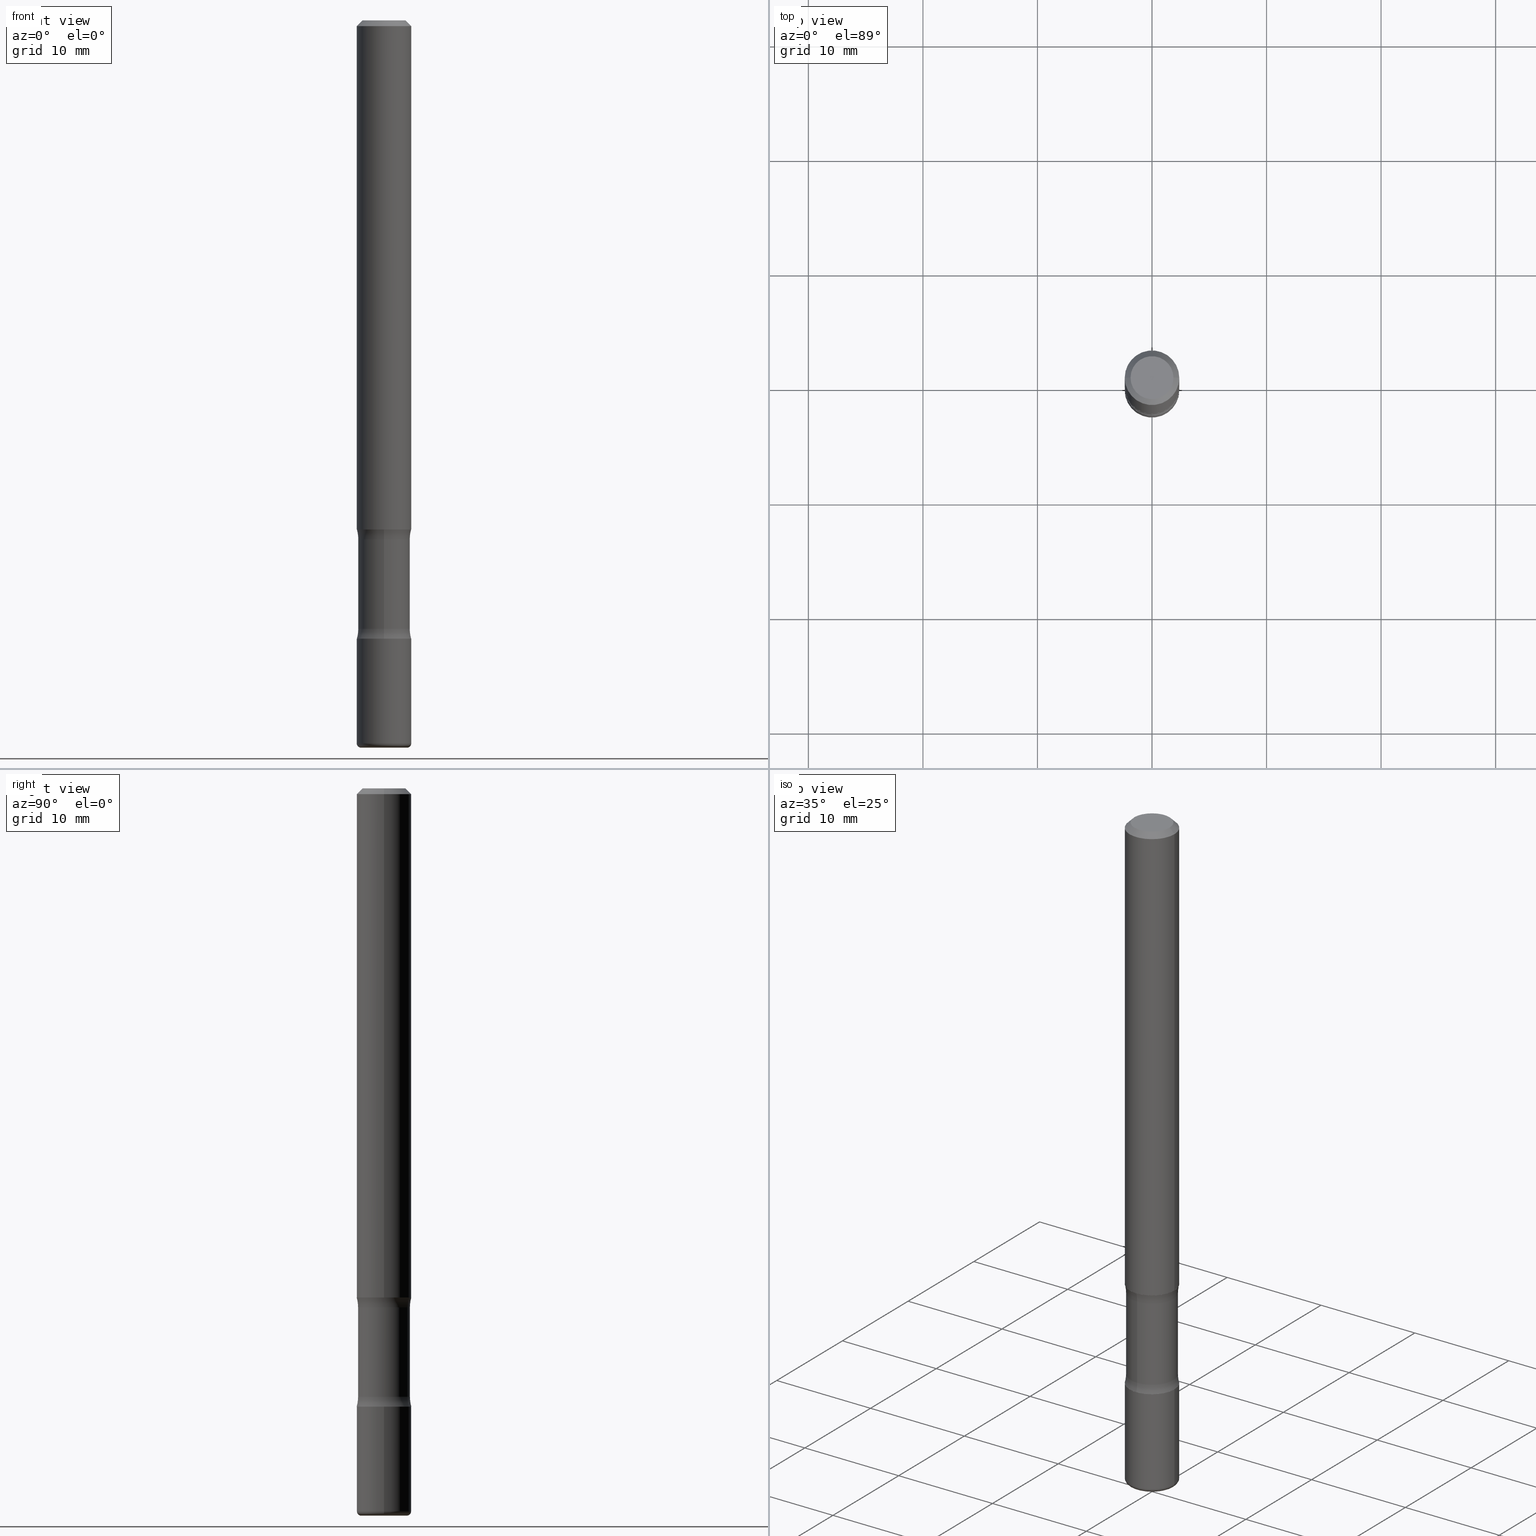
[diagram: canonical four-view strip — front | top / right | iso, engineering-drawing reading convention]
A machine part, canonical four-view strip (front | top / right | iso — engineering-drawing reading convention). The complete STEP part file that produces these views, byte-faithful:
ISO-10303-21;
HEADER;
FILE_DESCRIPTION (( 'STEP AP203' ),
    '1' );
FILE_NAME ('37776.STEP',
    '2024-03-02T00:13:44',
    ( '' ),
    ( '' ),
    'SwSTEP 2.0',
    'SolidWorks 2023',
    '' );
FILE_SCHEMA (( 'CONFIG_CONTROL_DESIGN' ));
ENDSEC;

DATA;
#1 = EDGE_LOOP ( 'NONE', ( #114, #169 ) ) ;
#2 = DIRECTION ( 'NONE',  ( -6.982962677686266711E-15, -1.000000000000000000, 3.491481338843145583E-15 ) ) ;
#3 = CARTESIAN_POINT ( 'NONE',  ( 8.726388948129611336E-30, -1.361158663068067946E-14, -2.125000000000000000 ) ) ;
#4 = APPROVAL_STATUS ( 'not_yet_approved' ) ;
#5 = ORIENTED_EDGE ( 'NONE', *, *, #517, .F. ) ;
#6 = CLOSED_SHELL ( 'NONE', ( #232, #502, #361, #266, #245, #106 ) ) ;
#7 = CARTESIAN_POINT ( 'NONE',  ( -0.07875000000000008382, -8.089674127473454054E-15, -2.500000000000000444 ) ) ;
#8 = CONICAL_SURFACE ( 'NONE', #209, 0.09374999999999981959, 0.7853981633974472798 ) ;
#9 = AXIS2_PLACEMENT_3D ( 'NONE', #89, #249, #420 ) ;
#10 = DIRECTION ( 'NONE',  ( -2.445468806185136877E-29, 3.491481338843145188E-15, 1.000000000000000000 ) ) ;
#11 = DIRECTION ( 'NONE',  ( -1.000000000000000000, 6.982962677686265922E-15, -4.876176775795935793E-29 ) ) ;
#12 = EDGE_CURVE ( 'NONE', #467, #431, #296, .T. ) ;
#13 = DIRECTION ( 'NONE',  ( 6.982962677686265922E-15, 1.000000000000000000, -3.336808337214296061E-15 ) ) ;
#14 = DIRECTION ( 'NONE',  ( 2.438088387897960049E-29, -3.491481338843145188E-15, -1.000000000000000000 ) ) ;
#15 = ORIENTED_EDGE ( 'NONE', *, *, #140, .T. ) ;
#16 = CARTESIAN_POINT ( 'NONE',  ( 4.890937612370276662E-31, -6.982962677686296539E-17, -0.02000000000000001776 ) ) ;
#17 = DIMENSIONAL_EXPONENTS ( 1.000000000000000000, 0.000000000000000000, 0.000000000000000000, 0.000000000000000000, 0.000000000000000000, 0.000000000000000000, 0.000000000000000000 ) ;
#18 = VECTOR ( 'NONE', #326, 39.37007874015748143 ) ;
#19 = AXIS2_PLACEMENT_3D ( 'NONE', #293, #27, #13 ) ;
#20 = ORIENTED_EDGE ( 'NONE', *, *, #98, .T. ) ;
#21 = ORIENTED_EDGE ( 'NONE', *, *, #429, .F. ) ;
#22 = DIRECTION ( 'NONE',  ( 1.000000000000000000, -6.982962677686266711E-15, 4.876176775795935793E-29 ) ) ;
#23 = DIRECTION ( 'NONE',  ( 1.000000000000000000, -6.982962677686265922E-15, 4.876176775795935793E-29 ) ) ;
#24 = DIRECTION ( 'NONE',  ( -1.000000000000000000, 6.982962677686265922E-15, -4.883557194083112901E-29 ) ) ;
#25 = FACE_OUTER_BOUND ( 'NONE', #301, .T. ) ;
#26 = ORIENTED_EDGE ( 'NONE', *, *, #199, .F. ) ;
#27 = DIRECTION ( 'NONE',  ( 2.553476385947133355E-29, -3.336808337214295667E-15, -1.000000000000000000 ) ) ;
#28 = CARTESIAN_POINT ( 'NONE',  ( 0.09375000000000004163, -6.764745094008592175E-15, -1.750000000000000000 ) ) ;
#29 = AXIS2_PLACEMENT_3D ( 'NONE', #320, #287, #171 ) ;
#30 = APPROVAL_PERSON_ORGANIZATION ( #492, #483, #402 ) ;
#31 = EDGE_CURVE ( 'NONE', #290, #75, #208, .T. ) ;
#32 = DIRECTION ( 'NONE',  ( -1.000000000000000000, 6.982962677686267499E-15, 0.000000000000000000 ) ) ;
#33 = ORIENTED_EDGE ( 'NONE', *, *, #550, .T. ) ;
#34 = ORIENTED_EDGE ( 'NONE', *, *, #47, .T. ) ;
#35 = COORDINATED_UNIVERSAL_TIME_OFFSET ( 5, 0, .BEHIND. ) ;
#36 = CALENDAR_DATE ( 2024, 1, 3 ) ;
#37 = PLANE ( 'NONE',  #280 ) ;
#38 = PRODUCT ( '37776', '37776', '', ( #158 ) ) ;
#39 = ADVANCED_FACE ( 'NONE', ( #241 ), #192, .T. ) ;
#40 = CIRCLE ( 'NONE', #146, 0.09374999999999981959 ) ;
#41 = DIRECTION ( 'NONE',  ( 1.000000000000000000, -6.982962677686266711E-15, 4.876176775795935793E-29 ) ) ;
#42 = ADVANCED_FACE ( 'NONE', ( #281 ), #507, .F. ) ;
#43 = DIRECTION ( 'NONE',  ( 1.000000000000000000, -6.982962677686258822E-15, 4.883557194083110098E-29 ) ) ;
#44 = ORIENTED_EDGE ( 'NONE', *, *, #411, .T. ) ;
#45 = ORIENTED_EDGE ( 'NONE', *, *, #477, .T. ) ;
#46 = AXIS2_PLACEMENT_3D ( 'NONE', #458, #452, #497 ) ;
#47 = EDGE_CURVE ( 'NONE', #344, #246, #141, .T. ) ;
#48 = CARTESIAN_POINT ( 'NONE',  ( -0.09375000000000005551, 6.661338147750943187E-16, -4.611501647113976798E-30 ) ) ;
#49 = VERTEX_POINT ( 'NONE', #159 ) ;
#50 = CARTESIAN_POINT ( 'NONE',  ( 4.325656488947447574E-29, -6.281246590105103764E-15, -1.783910210022204623 ) ) ;
#51 = DIRECTION ( 'NONE',  ( 1.000000000000000000, 0.000000000000000000, 0.000000000000000000 ) ) ;
#52 = DIRECTION ( 'NONE',  ( 1.000000000000000000, -6.982962677686266711E-15, 4.876176775795935793E-29 ) ) ;
#53 = EDGE_CURVE ( 'NONE', #393, #265, #242, .T. ) ;
#54 = CIRCLE ( 'NONE', #499, 0.01500000000000038629 ) ;
#55 = LINE ( 'NONE', #377, #193 ) ;
#56 = EDGE_CURVE ( 'NONE', #278, #144, #234, .T. ) ;
#57 = DIRECTION ( 'NONE',  ( -2.445468806185136597E-29, 3.491481338843145583E-15, 1.000000000000000000 ) ) ;
#58 = ORIENTED_EDGE ( 'NONE', *, *, #12, .T. ) ;
#59 = ORIENTED_EDGE ( 'NONE', *, *, #433, .T. ) ;
#60 = CARTESIAN_POINT ( 'NONE',  ( 6.154174857873591467E-29, -8.670700971497045879E-15, -2.500000000000000000 ) ) ;
#61 = CARTESIAN_POINT ( 'NONE',  ( 5.196621213143415268E-29, -7.419397845041685201E-15, -2.125000000000000000 ) ) ;
#62 = EDGE_LOOP ( 'NONE', ( #542, #181, #427, #79 ) ) ;
#63 = ORIENTED_EDGE ( 'NONE', *, *, #98, .F. ) ;
#64 = LINE ( 'NONE', #425, #303 ) ;
#65 = CIRCLE ( 'NONE', #243, 0.01500000000000038629 ) ;
#66 = CIRCLE ( 'NONE', #286, 0.1250000000000000278 ) ;
#67 = CARTESIAN_POINT ( 'NONE',  ( -6.431716872910290192E-16, -0.09375000000000745237, -2.125000000000000000 ) ) ;
#68 = ORIENTED_EDGE ( 'NONE', *, *, #300, .T. ) ;
#69 = CARTESIAN_POINT ( 'NONE',  ( -1.468575352647916884E-15, -0.2140625000000072886, -2.091089789977794933 ) ) ;
#70 = APPROVAL_DATE_TIME ( #349, #275 ) ;
#71 = CIRCLE ( 'NONE', #430, 0.09375000000000006939 ) ;
#72 = AXIS2_PLACEMENT_3D ( 'NONE', #94, #367, #515 ) ;
#73 = ORIENTED_EDGE ( 'NONE', *, *, #283, .F. ) ;
#74 =( LENGTH_UNIT ( ) NAMED_UNIT ( * ) SI_UNIT ( $, .METRE. ) );
#75 = VERTEX_POINT ( 'NONE', #416 ) ;
#76 = AXIS2_PLACEMENT_3D ( 'NONE', #221, #423, #469 ) ;
#77 = LOCAL_TIME ( 19, 13, 44.00000000000000000, #35 ) ;
#78 = COORDINATED_UNIVERSAL_TIME_OFFSET ( 5, 0, .BEHIND. ) ;
#79 = ORIENTED_EDGE ( 'NONE', *, *, #429, .T. ) ;
#80 = DIRECTION ( 'NONE',  ( -6.982962677686265922E-15, -1.000000000000000000, 0.000000000000000000 ) ) ;
#81 = FACE_OUTER_BOUND ( 'NONE', #198, .T. ) ;
#82 = AXIS2_PLACEMENT_3D ( 'NONE', #150, #57, #22 ) ;
#83 = ORGANIZATION ( 'UNSPECIFIED', 'UNSPECIFIED', '' ) ;
#84 = EDGE_CURVE ( 'NONE', #138, #265, #154, .T. ) ;
#85 = DIRECTION ( 'NONE',  ( 1.000000000000000000, -6.982962677686267499E-15, 0.000000000000000000 ) ) ;
#86 = CARTESIAN_POINT ( 'NONE',  ( 6.076989983370064174E-29, -8.676331127025216680E-15, -2.484999999999999876 ) ) ;
#87 = DIRECTION ( 'NONE',  ( 2.553476385947133355E-29, -3.336808337214295667E-15, -1.000000000000000000 ) ) ;
#88 = CARTESIAN_POINT ( 'NONE',  ( -6.431716872910389785E-16, -0.09375000000000620337, -1.749999999999999556 ) ) ;
#89 = CARTESIAN_POINT ( 'NONE',  ( 4.239067568413239630E-29, -6.168094718586322946E-15, -1.750000000000000000 ) ) ;
#90 = EDGE_LOOP ( 'NONE', ( #536, #168 ) ) ;
#91 = LINE ( 'NONE', #250, #92 ) ;
#92 = VECTOR ( 'NONE', #428, 39.37007874015748143 ) ;
#93 = PRODUCT_DEFINITION_FORMATION_WITH_SPECIFIED_SOURCE ( 'ANY', '', #38, .NOT_KNOWN. ) ;
#94 = CARTESIAN_POINT ( 'NONE',  ( 4.279570410823988484E-29, -6.110092342975504671E-15, -1.750000000000000000 ) ) ;
#95 = FACE_OUTER_BOUND ( 'NONE', #96, .T. ) ;
#96 = EDGE_LOOP ( 'NONE', ( #527, #204 ) ) ;
#97 = CC_DESIGN_PERSON_AND_ORGANIZATION_ASSIGNMENT ( #268, #356, ( #93 ) ) ;
#98 = EDGE_CURVE ( 'NONE', #246, #344, #297, .T. ) ;
#99 = EDGE_LOOP ( 'NONE', ( #68, #130 ) ) ;
#100 = CIRCLE ( 'NONE', #547, 0.09375000000000002776 ) ;
#101 = CIRCLE ( 'NONE', #548, 0.1250000000000000278 ) ;
#102 = CARTESIAN_POINT ( 'NONE',  ( 4.890937612370276662E-31, -6.982962677686296539E-17, -0.02000000000000001776 ) ) ;
#103 = CARTESIAN_POINT ( 'NONE',  ( 0.09375000000000026368, -9.330983878058304973E-15, -2.484999999999999876 ) ) ;
#104 = EDGE_LOOP ( 'NONE', ( #26, #418, #33, #135 ) ) ;
#105 = CARTESIAN_POINT ( 'NONE',  ( 6.219201134814940684E-16, 0.08906249999999125977, -2.500000000000000444 ) ) ;
#106 = ADVANCED_FACE ( 'NONE', ( #81 ), #235, .T. ) ;
#107 = EDGE_LOOP ( 'NONE', ( #190, #439 ) ) ;
#108 = AXIS2_PLACEMENT_3D ( 'NONE', #486, #388, #23 ) ;
#109 = ORIENTED_EDGE ( 'NONE', *, *, #545, .F. ) ;
#110 = DIRECTION ( 'NONE',  ( 6.860497997771531562E-15, 1.000000000000000000, 0.000000000000000000 ) ) ;
#111 = EDGE_LOOP ( 'NONE', ( #263, #145, #44, #400 ) ) ;
#112 = CARTESIAN_POINT ( 'NONE',  ( -0.09375000000000004163, -2.423827170101085722E-15, -1.750000000000000000 ) ) ;
#113 = DIRECTION ( 'NONE',  ( 1.000000000000000000, -6.982962677686270655E-15, 0.000000000000000000 ) ) ;
#114 = ORIENTED_EDGE ( 'NONE', *, *, #424, .T. ) ;
#115 = CC_DESIGN_PERSON_AND_ORGANIZATION_ASSIGNMENT ( #264, #309, ( #535 ) ) ;
#116 = DIRECTION ( 'NONE',  ( -2.445468806185136597E-29, 3.491481338843145583E-15, 1.000000000000000000 ) ) ;
#117 = ADVANCED_FACE ( 'NONE', ( #195 ), #355, .T. ) ;
#118 =( NAMED_UNIT ( * ) SI_UNIT ( $, .STERADIAN. ) SOLID_ANGLE_UNIT ( ) );
#119 = ORIENTED_EDGE ( 'NONE', *, *, #152, .T. ) ;
#120 = ORIENTED_EDGE ( 'NONE', *, *, #526, .T. ) ;
#121 = CIRCLE ( 'NONE', #457, 0.09375000000000004163 ) ;
#122 = DIRECTION ( 'NONE',  ( 0.7071067811865467956, -7.319954787623254468E-15, -0.7071067811865482389 ) ) ;
#123 = DIRECTION ( 'NONE',  ( 6.982962677686265922E-15, 1.000000000000000000, -2.913971193241877611E-15 ) ) ;
#124 = DIRECTION ( 'NONE',  ( 6.982962677686265133E-15, 1.000000000000000000, -3.067338098149349877E-15 ) ) ;
#125 = CARTESIAN_POINT ( 'NONE',  ( 0.000000000000000000, 0.000000000000000000, 0.000000000000000000 ) ) ;
#126 = VERTEX_POINT ( 'NONE', #112 ) ;
#127 = CARTESIAN_POINT ( 'NONE',  ( 5.113694852322927974E-29, -7.301000979552905916E-15, -2.091089789977795821 ) ) ;
#128 = DIRECTION ( 'NONE',  ( -2.445468806185136597E-29, 3.491481338843145583E-15, 1.000000000000000000 ) ) ;
#129 = DIRECTION ( 'NONE',  ( 6.982962677686265922E-15, 1.000000000000000000, -3.336808337214296061E-15 ) ) ;
#130 = ORIENTED_EDGE ( 'NONE', *, *, #31, .T. ) ;
#131 = CIRCLE ( 'NONE', #200, 0.07875000000000008382 ) ;
#132 = DIRECTION ( 'NONE',  ( 1.000000000000000000, -6.982962677686267499E-15, 0.000000000000000000 ) ) ;
#133 = CARTESIAN_POINT ( 'NONE',  ( 6.076989983370064174E-29, -8.676331127025216680E-15, -2.484999999999999876 ) ) ;
#134 = EDGE_CURVE ( 'NONE', #144, #393, #65, .T. ) ;
#135 = ORIENTED_EDGE ( 'NONE', *, *, #477, .F. ) ;
#136 = CYLINDRICAL_SURFACE ( 'NONE', #228, 0.09374999999999991673 ) ;
#137 = ORIENTED_EDGE ( 'NONE', *, *, #347, .T. ) ;
#138 = VERTEX_POINT ( 'NONE', #510 ) ;
#139 = DIRECTION ( 'NONE',  ( -2.445468806185136597E-29, 3.491481338843145583E-15, 1.000000000000000000 ) ) ;
#140 = EDGE_CURVE ( 'NONE', #344, #431, #248, .T. ) ;
#141 = CIRCLE ( 'NONE', #46, 0.08906249999999994726 ) ;
#142 = AXIS2_PLACEMENT_3D ( 'NONE', #451, #276, #85 ) ;
#143 = CARTESIAN_POINT ( 'NONE',  ( 5.113694852322927974E-29, -7.301000979552905916E-15, -2.091089789977795821 ) ) ;
#144 = VERTEX_POINT ( 'NONE', #7 ) ;
#145 = ORIENTED_EDGE ( 'NONE', *, *, #382, .T. ) ;
#146 = AXIS2_PLACEMENT_3D ( 'NONE', #16, #210, #132 ) ;
#147 = CIRCLE ( 'NONE', #9, 0.09375000000000009714 ) ;
#148 = DATE_TIME_ROLE ( 'classification_date' ) ;
#149 = APPROVAL_DATE_TIME ( #359, #483 ) ;
#150 = CARTESIAN_POINT ( 'NONE',  ( 0.000000000000000000, 0.000000000000000000, 0.000000000000000000 ) ) ;
#151 = PERSON_AND_ORGANIZATION ( #394, #83 ) ;
#152 = EDGE_CURVE ( 'NONE', #49, #259, #40, .T. ) ;
#153 = CARTESIAN_POINT ( 'NONE',  ( 6.113672015462842613E-29, -8.728703347107866520E-15, -2.500000000000000444 ) ) ;
#154 = CIRCLE ( 'NONE', #489, 0.09375000000000002776 ) ;
#155 = CIRCLE ( 'NONE', #422, 0.09375000000000002776 ) ;
#156 = ADVANCED_FACE ( 'NONE', ( #376 ), #518, .F. ) ;
#157 = DIRECTION ( 'NONE',  ( 1.000000000000000000, -6.982962677686267499E-15, 0.000000000000000000 ) ) ;
#158 = MECHANICAL_CONTEXT ( 'NONE', #461, 'mechanical' ) ;
#159 = CARTESIAN_POINT ( 'NONE',  ( 0.09374999999999981959, -7.130013140679428044E-16, -0.02000000000000001776 ) ) ;
#160 = CARTESIAN_POINT ( 'NONE',  ( -0.07875000000000008382, -8.116778722614137090E-15, -2.484999999999999876 ) ) ;
#161 = TOROIDAL_SURFACE ( 'NONE', #480, 0.2140624999999999889, 0.1250000000000000278 ) ;
#162 = CC_DESIGN_APPROVAL ( #275, ( #93 ) ) ;
#163 = LINE ( 'NONE', #223, #512 ) ;
#164 = CARTESIAN_POINT ( 'NONE',  ( 0.07374999999999984346, -6.094815207017961198E-16, 3.931526600461598749E-30 ) ) ;
#165 = EDGE_CURVE ( 'NONE', #126, #259, #91, .T. ) ;
#166 = CARTESIAN_POINT ( 'NONE',  ( 6.113672015462842613E-29, -8.728703347107866520E-15, -2.500000000000000444 ) ) ;
#167 = DIRECTION ( 'NONE',  ( 1.000000000000000000, -6.982962677686269866E-15, 0.000000000000000000 ) ) ;
#168 = ORIENTED_EDGE ( 'NONE', *, *, #283, .T. ) ;
#169 = ORIENTED_EDGE ( 'NONE', *, *, #199, .T. ) ;
#170 = AXIS2_PLACEMENT_3D ( 'NONE', #143, #327, #129 ) ;
#171 = DIRECTION ( 'NONE',  ( -6.982962677686265922E-15, -1.000000000000000000, 3.336808337214295667E-15 ) ) ;
#172 = LOCAL_TIME ( 19, 13, 44.00000000000000000, #78 ) ;
#173 = MANIFOLD_SOLID_BREP ( 'Body-Move/Copy2[1]', #219 ) ;
#174 = DIRECTION ( 'NONE',  ( 6.982962677686265133E-15, 1.000000000000000000, -6.134676196298701332E-15 ) ) ;
#175 = VERTEX_POINT ( 'NONE', #88 ) ;
#176 = DIRECTION ( 'NONE',  ( -2.445468806185136597E-29, 3.491481338843145583E-15, 1.000000000000000000 ) ) ;
#177 = EDGE_CURVE ( 'NONE', #290, #49, #64, .T. ) ;
#178 = DIRECTION ( 'NONE',  ( -6.982962677686265922E-15, -1.000000000000000000, 0.000000000000000000 ) ) ;
#179 = DIRECTION ( 'NONE',  ( -1.000000000000000000, 6.982962677686267499E-15, 0.000000000000000000 ) ) ;
#180 = DIRECTION ( 'NONE',  ( -2.445468806185136597E-29, 3.491481338843145583E-15, 1.000000000000000000 ) ) ;
#181 = ORIENTED_EDGE ( 'NONE', *, *, #300, .F. ) ;
#182 = DIRECTION ( 'NONE',  ( 1.000000000000000000, -6.860497997771530774E-15, 4.842693077587735886E-29 ) ) ;
#183 = AXIS2_PLACEMENT_3D ( 'NONE', #60, #299, #436 ) ;
#184 = CIRCLE ( 'NONE', #525, 0.1250000000000000278 ) ;
#185 = DIRECTION ( 'NONE',  ( 2.438088387897960049E-29, -3.491481338843145188E-15, -1.000000000000000000 ) ) ;
#186 = ORIENTED_EDGE ( 'NONE', *, *, #84, .F. ) ;
#187 = DATE_AND_TIME ( #399, #172 ) ;
#188 = CC_DESIGN_PERSON_AND_ORGANIZATION_ASSIGNMENT ( #307, #494, ( #93 ) ) ;
#189 = DIRECTION ( 'NONE',  ( 2.445468806185136597E-29, -3.491481338843145583E-15, -1.000000000000000000 ) ) ;
#190 = ORIENTED_EDGE ( 'NONE', *, *, #56, .F. ) ;
#191 = APPROVAL_ROLE ( '' ) ;
#192 = TOROIDAL_SURFACE ( 'NONE', #315, 0.07875000000000008382, 0.01500000000000039496 ) ;
#193 = VECTOR ( 'NONE', #10, 39.37007874015748143 ) ;
#194 = LENGTH_MEASURE_WITH_UNIT ( LENGTH_MEASURE( 0.02539999999999999897 ), #74 );
#195 = FACE_OUTER_BOUND ( 'NONE', #398, .T. ) ;
#196 = DIRECTION ( 'NONE',  ( -2.445468806185136597E-29, 3.491481338843145583E-15, 1.000000000000000000 ) ) ;
#197 = CALENDAR_DATE ( 2024, 1, 3 ) ;
#198 = EDGE_LOOP ( 'NONE', ( #544, #368, #488, #21 ) ) ;
#199 = EDGE_CURVE ( 'NONE', #351, #207, #345, .T. ) ;
#200 = AXIS2_PLACEMENT_3D ( 'NONE', #166, #530, #391 ) ;
#201 = CC_DESIGN_APPROVAL ( #500, ( #535 ) ) ;
#202 = DIRECTION ( 'NONE',  ( -2.445468806185136877E-29, 3.491481338843145188E-15, 1.000000000000000000 ) ) ;
#203 = PERSON_AND_ORGANIZATION ( #394, #83 ) ;
#204 = ORIENTED_EDGE ( 'NONE', *, *, #310, .F. ) ;
#205 = DIRECTION ( 'NONE',  ( 1.000000000000000000, -6.982962677686217012E-15, 0.000000000000000000 ) ) ;
#206 = DIRECTION ( 'NONE',  ( 6.982962677686265922E-15, 1.000000000000000000, -3.336808337214296061E-15 ) ) ;
#207 = VERTEX_POINT ( 'NONE', #333 ) ;
#208 = CIRCLE ( 'NONE', #270, 0.07374999999999984346 ) ;
#209 = AXIS2_PLACEMENT_3D ( 'NONE', #102, #226, #179 ) ;
#210 = DIRECTION ( 'NONE',  ( -2.445468806185136597E-29, 3.491481338843145583E-15, 1.000000000000000000 ) ) ;
#211 = CARTESIAN_POINT ( 'NONE',  ( -6.270923951087611034E-16, -0.08906250000000623390, -1.783910210022204401 ) ) ;
#212 = DIRECTION ( 'NONE',  ( -2.445468806185136597E-29, 3.491481338843145583E-15, 1.000000000000000000 ) ) ;
#213 = CC_DESIGN_PERSON_AND_ORGANIZATION_ASSIGNMENT ( #505, #244, ( #38 ) ) ;
#214 = ORIENTED_EDGE ( 'NONE', *, *, #31, .F. ) ;
#215 = DIRECTION ( 'NONE',  ( -1.000000000000000000, 7.105427357601001859E-15, 0.000000000000000000 ) ) ;
#216 = CARTESIAN_POINT ( 'NONE',  ( 0.07875000000000008382, -9.226239437893010026E-15, -2.484999999999999876 ) ) ;
#217 = DIRECTION ( 'NONE',  ( 1.000000000000000000, -6.982962677686266711E-15, 4.876176775795935793E-29 ) ) ;
#218 = ORIENTED_EDGE ( 'NONE', *, *, #56, .T. ) ;
#219 = CLOSED_SHELL ( 'NONE', ( #117, #247, #508, #39, #240, #42 ) ) ;
#220 = AXIS2_PLACEMENT_3D ( 'NONE', #383, #294, #174 ) ;
#221 = CARTESIAN_POINT ( 'NONE',  ( 5.196621213143415268E-29, -7.419397845041685201E-15, -2.125000000000000000 ) ) ;
#222 =( GEOMETRIC_REPRESENTATION_CONTEXT ( 3 ) GLOBAL_UNCERTAINTY_ASSIGNED_CONTEXT ( ( #233 ) ) GLOBAL_UNIT_ASSIGNED_CONTEXT ( ( #308, #446, #118 ) ) REPRESENTATION_CONTEXT ( 'NONE', 'WORKASPACE' ) );
#223 = CARTESIAN_POINT ( 'NONE',  ( -0.09374999999999981959, 5.848231242562233185E-16, -0.02000000000000001776 ) ) ;
#224 = CARTESIAN_POINT ( 'NONE',  ( -0.09375000000000026368, -8.010197312250121178E-15, -2.484999999999999876 ) ) ;
#225 = PLANE ( 'NONE',  #108 ) ;
#226 = DIRECTION ( 'NONE',  ( 2.445468806185136597E-29, -3.491481338843145583E-15, -1.000000000000000000 ) ) ;
#227 = EDGE_LOOP ( 'NONE', ( #491, #63, #442, #230 ) ) ;
#228 = AXIS2_PLACEMENT_3D ( 'NONE', #473, #419, #52 ) ;
#229 = TOROIDAL_SURFACE ( 'NONE', #19, 0.2140624999999999889, 0.1250000000000000278 ) ;
#230 = ORIENTED_EDGE ( 'NONE', *, *, #441, .T. ) ;
#231 = ORIENTED_EDGE ( 'NONE', *, *, #444, .T. ) ;
#232 = ADVANCED_FACE ( 'NONE', ( #529 ), #136, .T. ) ;
#233 = UNCERTAINTY_MEASURE_WITH_UNIT (LENGTH_MEASURE( 1.000000000000000082E-05 ), #308, 'distance_accuracy_value', 'NONE');
#234 = CIRCLE ( 'NONE', #456, 0.07875000000000008382 ) ;
#235 = CYLINDRICAL_SURFACE ( 'NONE', #256, 0.09374999999999991673 ) ;
#236 = VECTOR ( 'NONE', #352, 39.37007874015748143 ) ;
#237 = ADVANCED_FACE ( 'NONE', ( #453 ), #161, .F. ) ;
#238 = DIRECTION ( 'NONE',  ( -2.445468806185136597E-29, 3.491481338843145583E-15, 1.000000000000000000 ) ) ;
#239 = ORIENTED_EDGE ( 'NONE', *, *, #53, .T. ) ;
#240 = ADVANCED_FACE ( 'NONE', ( #415 ), #330, .T. ) ;
#241 = FACE_OUTER_BOUND ( 'NONE', #111, .T. ) ;
#242 = LINE ( 'NONE', #48, #511 ) ;
#243 = AXIS2_PLACEMENT_3D ( 'NONE', #160, #329, #215 ) ;
#244 = PERSON_AND_ORGANIZATION_ROLE ( 'design_owner' ) ;
#245 = ADVANCED_FACE ( 'NONE', ( #95 ), #225, .F. ) ;
#246 = VERTEX_POINT ( 'NONE', #434 ) ;
#247 = ADVANCED_FACE ( 'NONE', ( #25 ), #373, .T. ) ;
#248 = LINE ( 'NONE', #523, #18 ) ;
#249 = DIRECTION ( 'NONE',  ( 2.553476385947133355E-29, -3.336808337214295667E-15, -1.000000000000000000 ) ) ;
#250 = CARTESIAN_POINT ( 'NONE',  ( -0.09374999999999991673, 6.661338147750933326E-16, -4.611501647113969791E-30 ) ) ;
#251 = DIRECTION ( 'NONE',  ( 1.000000000000000000, -6.982962677686267499E-15, 0.000000000000000000 ) ) ;
#252 = CARTESIAN_POINT ( 'NONE',  ( 5.149934974793610063E-16, 0.07374999999999984346, -2.574967487396814399E-16 ) ) ;
#253 = CARTESIAN_POINT ( 'NONE',  ( -0.09375000000000002776, -7.381730671258356228E-15, -2.125000000000000000 ) ) ;
#254 = EDGE_LOOP ( 'NONE', ( #533, #34, #339, #332 ) ) ;
#255 = ORIENTED_EDGE ( 'NONE', *, *, #411, .F. ) ;
#256 = AXIS2_PLACEMENT_3D ( 'NONE', #273, #405, #41 ) ;
#257 = CIRCLE ( 'NONE', #438, 0.08906249999999993339 ) ;
#258 = CARTESIAN_POINT ( 'NONE',  ( 0.000000000000000000, 0.000000000000000000, 0.000000000000000000 ) ) ;
#259 = VERTEX_POINT ( 'NONE', #381 ) ;
#260 = ADVANCED_FACE ( 'NONE', ( #531 ), #379, .T. ) ;
#261 = TOROIDAL_SURFACE ( 'NONE', #397, 0.2140624999999999889, 0.1250000000000000278 ) ;
#262 = APPROVAL_PERSON_ORGANIZATION ( #448, #275, #191 ) ;
#263 = ORIENTED_EDGE ( 'NONE', *, *, #134, .F. ) ;
#264 = PERSON_AND_ORGANIZATION ( #394, #83 ) ;
#265 = VERTEX_POINT ( 'NONE', #253 ) ;
#266 = ADVANCED_FACE ( 'NONE', ( #426 ), #341, .F. ) ;
#267 = DIRECTION ( 'NONE',  ( -1.000000000000000000, 6.982962677686265922E-15, -4.876176775795935793E-29 ) ) ;
#268 = PERSON_AND_ORGANIZATION ( #394, #83 ) ;
#269 = COORDINATED_UNIVERSAL_TIME_OFFSET ( 5, 0, .BEHIND. ) ;
#270 = AXIS2_PLACEMENT_3D ( 'NONE', #360, #455, #557 ) ;
#271 = CIRCLE ( 'NONE', #298, 0.09375000000000009714 ) ;
#272 = ADVANCED_BREP_SHAPE_REPRESENTATION ( '37776', ( #173, #357, #340, #501 ), #222 ) ;
#273 = CARTESIAN_POINT ( 'NONE',  ( 0.000000000000000000, 0.000000000000000000, 0.000000000000000000 ) ) ;
#274 = DIRECTION ( 'NONE',  ( 2.438088387897960049E-29, -3.491481338843145188E-15, -1.000000000000000000 ) ) ;
#275 = APPROVAL ( #401, 'UNSPECIFIED' ) ;
#276 = DIRECTION ( 'NONE',  ( -2.445468806185136597E-29, 3.491481338843145583E-15, 1.000000000000000000 ) ) ;
#277 = CLOSED_SHELL ( 'NONE', ( #260, #412, #237, #466, #337, #156, #325, #406 ) ) ;
#278 = VERTEX_POINT ( 'NONE', #534 ) ;
#279 = TOROIDAL_SURFACE ( 'NONE', #170, 0.2140624999999999889, 0.1250000000000000278 ) ;
#280 = AXIS2_PLACEMENT_3D ( 'NONE', #306, #185, #267 ) ;
#281 = FACE_OUTER_BOUND ( 'NONE', #90, .T. ) ;
#282 = CARTESIAN_POINT ( 'NONE',  ( 6.076989983370064174E-29, -8.676331127025216680E-15, -2.484999999999999876 ) ) ;
#283 = EDGE_CURVE ( 'NONE', #265, #138, #100, .T. ) ;
#284 = PLANE ( 'NONE',  #72 ) ;
#285 = CIRCLE ( 'NONE', #447, 0.09375000000000004163 ) ;
#286 = AXIS2_PLACEMENT_3D ( 'NONE', #445, #450, #80 ) ;
#287 = DIRECTION ( 'NONE',  ( -2.553476385947132794E-29, 3.336808337214295667E-15, 1.000000000000000000 ) ) ;
#288 = CARTESIAN_POINT ( 'NONE',  ( -1.468575352647924772E-15, -0.2140625000000062339, -1.783910210022203513 ) ) ;
#289 = CARTESIAN_POINT ( 'NONE',  ( 4.279570410823988484E-29, -6.110092342975504671E-15, -1.750000000000000000 ) ) ;
#290 = VERTEX_POINT ( 'NONE', #164 ) ;
#291 = EDGE_LOOP ( 'NONE', ( #389, #386, #45, #58 ) ) ;
#292 = VERTEX_POINT ( 'NONE', #103 ) ;
#293 = CARTESIAN_POINT ( 'NONE',  ( 4.338651280918389502E-29, -6.262637308385086581E-15, -1.783910210022204401 ) ) ;
#294 = DIRECTION ( 'NONE',  ( 2.553476385947133355E-29, -3.336808337214295667E-15, -1.000000000000000000 ) ) ;
#295 = ORIENTED_EDGE ( 'NONE', *, *, #343, .T. ) ;
#296 = CIRCLE ( 'NONE', #372, 0.08906249999999993339 ) ;
#297 = CIRCLE ( 'NONE', #556, 0.08906249999999994726 ) ;
#298 = AXIS2_PLACEMENT_3D ( 'NONE', #321, #513, #123 ) ;
#299 = DIRECTION ( 'NONE',  ( 2.553476385947133355E-29, -3.336808337214295667E-15, -1.000000000000000000 ) ) ;
#300 = EDGE_CURVE ( 'NONE', #75, #290, #331, .T. ) ;
#301 = EDGE_LOOP ( 'NONE', ( #218, #322, #555, #255 ) ) ;
#302 = CARTESIAN_POINT ( 'NONE',  ( 4.279570410823988484E-29, -6.110092342975504671E-15, -1.750000000000000000 ) ) ;
#303 = VECTOR ( 'NONE', #122, 39.37007874015748143 ) ;
#304 = ORIENTED_EDGE ( 'NONE', *, *, #441, .F. ) ;
#305 = DATE_AND_TIME ( #546, #77 ) ;
#306 = CARTESIAN_POINT ( 'NONE',  ( -5.998323273978205330E-29, -2.607376997354762194E-14, -2.500000000000000000 ) ) ;
#307 = PERSON_AND_ORGANIZATION ( #394, #83 ) ;
#308 =( CONVERSION_BASED_UNIT ( 'INCH', #194 ) LENGTH_UNIT ( ) NAMED_UNIT ( #17 ) );
#309 = PERSON_AND_ORGANIZATION_ROLE ( 'creator' ) ;
#310 = EDGE_CURVE ( 'NONE', #126, #363, #285, .T. ) ;
#311 = DIRECTION ( 'NONE',  ( 6.982962677686265133E-15, 1.000000000000000000, -3.067338098149350666E-15 ) ) ;
#312 = PERSON_AND_ORGANIZATION_ROLE ( 'classification_officer' ) ;
#313 = DIRECTION ( 'NONE',  ( 6.982962677686265133E-15, 1.000000000000000000, -3.067338098149350666E-15 ) ) ;
#314 = APPROVAL_DATE_TIME ( #187, #500 ) ;
#315 = AXIS2_PLACEMENT_3D ( 'NONE', #86, #238, #43 ) ;
#316 = DIRECTION ( 'NONE',  ( 2.553476385947133355E-29, -3.336808337214295667E-15, -1.000000000000000000 ) ) ;
#317 = AXIS2_PLACEMENT_3D ( 'NONE', #380, #189, #32 ) ;
#318 = DIRECTION ( 'NONE',  ( 2.553476385947133355E-29, -3.336808337214295667E-15, -1.000000000000000000 ) ) ;
#319 = DIRECTION ( 'NONE',  ( 1.000000000000000000, -6.982962677686267499E-15, 0.000000000000000000 ) ) ;
#320 = CARTESIAN_POINT ( 'NONE',  ( 8.726388948129611336E-30, -1.361158663068067946E-14, -2.125000000000000000 ) ) ;
#321 = CARTESIAN_POINT ( 'NONE',  ( 4.239067568413239630E-29, -6.168094718586322946E-15, -1.750000000000000000 ) ) ;
#322 = ORIENTED_EDGE ( 'NONE', *, *, #134, .T. ) ;
#323 = AXIS2_PLACEMENT_3D ( 'NONE', #471, #212, #217 ) ;
#324 = LOCAL_TIME ( 19, 13, 44.00000000000000000, #408 ) ;
#325 = ADVANCED_FACE ( 'NONE', ( #521 ), #279, .F. ) ;
#326 = DIRECTION ( 'NONE',  ( 2.553476385947133355E-29, -3.336808337214295667E-15, -1.000000000000000000 ) ) ;
#327 = DIRECTION ( 'NONE',  ( 2.553476385947133355E-29, -3.336808337214295667E-15, -1.000000000000000000 ) ) ;
#328 = ORIENTED_EDGE ( 'NONE', *, *, #47, .F. ) ;
#329 = DIRECTION ( 'NONE',  ( 7.105427357601001859E-15, 1.000000000000000000, -3.491481338843145583E-15 ) ) ;
#330 = CYLINDRICAL_SURFACE ( 'NONE', #323, 0.09375000000000005551 ) ;
#331 = CIRCLE ( 'NONE', #403, 0.07374999999999984346 ) ;
#332 = ORIENTED_EDGE ( 'NONE', *, *, #550, .F. ) ;
#333 = CARTESIAN_POINT ( 'NONE',  ( 6.546527510331397661E-16, 0.09374999999999261702, -2.125000000000000444 ) ) ;
#334 = PRODUCT_RELATED_PRODUCT_CATEGORY ( 'detail', '', ( #38 ) ) ;
#335 = LINE ( 'NONE', #105, #538 ) ;
#336 = DIRECTION ( 'NONE',  ( 1.000000000000000000, -6.982962677686258822E-15, 4.883557194083110098E-29 ) ) ;
#337 = ADVANCED_FACE ( 'NONE', ( #537 ), #284, .F. ) ;
#338 = EDGE_LOOP ( 'NONE', ( #20, #15, #468, #385 ) ) ;
#339 = ORIENTED_EDGE ( 'NONE', *, *, #396, .T. ) ;
#340 = MANIFOLD_SOLID_BREP ( 'Body-Move/Copy2[4]', #277 ) ;
#341 = PLANE ( 'NONE',  #395 ) ;
#342 = CYLINDRICAL_SURFACE ( 'NONE', #183, 0.08906249999999993339 ) ;
#343 = EDGE_CURVE ( 'NONE', #292, #393, #384, .T. ) ;
#344 = VERTEX_POINT ( 'NONE', #211 ) ;
#345 = CIRCLE ( 'NONE', #76, 0.09375000000000002776 ) ;
#346 = DIRECTION ( 'NONE',  ( 1.000000000000000000, -6.860497997771530774E-15, 4.842693077587735886E-29 ) ) ;
#347 = EDGE_CURVE ( 'NONE', #393, #292, #71, .T. ) ;
#348 = ORIENTED_EDGE ( 'NONE', *, *, #463, .F. ) ;
#349 = DATE_AND_TIME ( #197, #324 ) ;
#350 = FACE_OUTER_BOUND ( 'NONE', #107, .T. ) ;
#351 = VERTEX_POINT ( 'NONE', #67 ) ;
#352 = DIRECTION ( 'NONE',  ( -2.445468806185136877E-29, 3.491481338843145188E-15, 1.000000000000000000 ) ) ;
#353 = AXIS2_PLACEMENT_3D ( 'NONE', #282, #128, #157 ) ;
#354 = APPROVAL_PERSON_ORGANIZATION ( #203, #500, #460 ) ;
#355 = CYLINDRICAL_SURFACE ( 'NONE', #82, 0.09375000000000005551 ) ;
#356 = PERSON_AND_ORGANIZATION_ROLE ( 'design_supplier' ) ;
#357 = MANIFOLD_SOLID_BREP ( 'Body-Move/Copy2[2]', #6 ) ;
#358 = DIRECTION ( 'NONE',  ( 1.000000000000000000, -6.982962677686269866E-15, 0.000000000000000000 ) ) ;
#359 = DATE_AND_TIME ( #36, #481 ) ;
#360 = CARTESIAN_POINT ( 'NONE',  ( 0.000000000000000000, 0.000000000000000000, 0.000000000000000000 ) ) ;
#361 = ADVANCED_FACE ( 'NONE', ( #475 ), #8, .T. ) ;
#362 = CIRCLE ( 'NONE', #437, 0.1250000000000000278 ) ;
#363 = VERTEX_POINT ( 'NONE', #28 ) ;
#364 = APPLICATION_PROTOCOL_DEFINITION ( 'international standard', 'config_control_design', 1994, #461 ) ;
#365 = DIRECTION ( 'NONE',  ( 2.553476385947133355E-29, -3.336808337214295667E-15, -1.000000000000000000 ) ) ;
#366 = EDGE_LOOP ( 'NONE', ( #328, #476, #59, #5 ) ) ;
#367 = DIRECTION ( 'NONE',  ( 2.553476385947132794E-29, -3.336808337214295667E-15, -1.000000000000000000 ) ) ;
#368 = ORIENTED_EDGE ( 'NONE', *, *, #310, .T. ) ;
#369 = FACE_OUTER_BOUND ( 'NONE', #104, .T. ) ;
#370 = CARTESIAN_POINT ( 'NONE',  ( 5.110032292609207884E-29, -7.306245973522905960E-15, -2.091089789977795821 ) ) ;
#371 = APPLICATION_PROTOCOL_DEFINITION ( 'international standard', 'config_control_design', 1994, #496 ) ;
#372 = AXIS2_PLACEMENT_3D ( 'NONE', #370, #459, #311 ) ;
#373 = TOROIDAL_SURFACE ( 'NONE', #524, 0.07875000000000008382, 0.01500000000000039496 ) ;
#374 = CC_DESIGN_APPROVAL ( #483, ( #539 ) ) ;
#375 = EDGE_CURVE ( 'NONE', #344, #175, #362, .T. ) ;
#376 = FACE_OUTER_BOUND ( 'NONE', #1, .T. ) ;
#377 = CARTESIAN_POINT ( 'NONE',  ( 0.09375000000000005551, -6.546527510330878985E-16, 4.571415727308692608E-30 ) ) ;
#378 = CARTESIAN_POINT ( 'NONE',  ( 6.076989983370064174E-29, -8.676331127025216680E-15, -2.484999999999999876 ) ) ;
#379 = CYLINDRICAL_SURFACE ( 'NONE', #220, 0.08906249999999993339 ) ;
#380 = CARTESIAN_POINT ( 'NONE',  ( 4.890937612370276662E-31, -6.982962677686296539E-17, -0.02000000000000001776 ) ) ;
#381 = CARTESIAN_POINT ( 'NONE',  ( -0.09374999999999981959, 5.848231242562233185E-16, -0.02000000000000001776 ) ) ;
#382 = EDGE_CURVE ( 'NONE', #144, #278, #131, .T. ) ;
#383 = CARTESIAN_POINT ( 'NONE',  ( 6.154174857873591467E-29, -8.670700971497045879E-15, -2.500000000000000000 ) ) ;
#384 = CIRCLE ( 'NONE', #353, 0.09375000000000006939 ) ;
#385 = ORIENTED_EDGE ( 'NONE', *, *, #396, .F. ) ;
#386 = ORIENTED_EDGE ( 'NONE', *, *, #424, .F. ) ;
#387 = DIRECTION ( 'NONE',  ( 2.553476385947133355E-29, -3.336808337214295667E-15, -1.000000000000000000 ) ) ;
#388 = DIRECTION ( 'NONE',  ( -2.438088387897960049E-29, 3.491481338843145188E-15, 1.000000000000000000 ) ) ;
#389 = ORIENTED_EDGE ( 'NONE', *, *, #490, .F. ) ;
#390 = CARTESIAN_POINT ( 'NONE',  ( 1.494790448192267349E-15, 0.2140624999999926614, -2.091089789977796265 ) ) ;
#391 = DIRECTION ( 'NONE',  ( 1.000000000000000000, -6.982962677686267499E-15, 0.000000000000000000 ) ) ;
#392 = DIRECTION ( 'NONE',  ( -2.445468806185136597E-29, 3.491481338843145583E-15, 1.000000000000000000 ) ) ;
#393 = VERTEX_POINT ( 'NONE', #224 ) ;
#394 = PERSON ( 'UNSPECIFIED', 'UNSPECIFIED', 'UNSPECIFIED', ('UNSPECIFIED'), ('UNSPECIFIED'), ('UNSPECIFIED') ) ;
#395 = AXIS2_PLACEMENT_3D ( 'NONE', #252, #14, #11 ) ;
#396 = EDGE_CURVE ( 'NONE', #246, #467, #335, .T. ) ;
#397 = AXIS2_PLACEMENT_3D ( 'NONE', #127, #318, #504 ) ;
#398 = EDGE_LOOP ( 'NONE', ( #295, #239, #186, #532 ) ) ;
#399 = CALENDAR_DATE ( 2024, 1, 3 ) ;
#400 = ORIENTED_EDGE ( 'NONE', *, *, #347, .F. ) ;
#401 = APPROVAL_STATUS ( 'not_yet_approved' ) ;
#402 = APPROVAL_ROLE ( '' ) ;
#403 = AXIS2_PLACEMENT_3D ( 'NONE', #258, #392, #421 ) ;
#404 = CONICAL_SURFACE ( 'NONE', #317, 0.09374999999999981959, 0.7853981633974472798 ) ;
#405 = DIRECTION ( 'NONE',  ( -2.445468806185136597E-29, 3.491481338843145583E-15, 1.000000000000000000 ) ) ;
#406 = ADVANCED_FACE ( 'NONE', ( #470 ), #342, .T. ) ;
#407 = COORDINATED_UNIVERSAL_TIME_OFFSET ( 5, 0, .BEHIND. ) ;
#408 = COORDINATED_UNIVERSAL_TIME_OFFSET ( 5, 0, .BEHIND. ) ;
#409 = FACE_OUTER_BOUND ( 'NONE', #522, .T. ) ;
#410 = VERTEX_POINT ( 'NONE', #487 ) ;
#411 = EDGE_CURVE ( 'NONE', #278, #292, #54, .T. ) ;
#412 = ADVANCED_FACE ( 'NONE', ( #369 ), #261, .F. ) ;
#413 = AXIS2_PLACEMENT_3D ( 'NONE', #3, #274, #560 ) ;
#414 = ORIENTED_EDGE ( 'NONE', *, *, #165, .T. ) ;
#415 = FACE_OUTER_BOUND ( 'NONE', #528, .T. ) ;
#416 = CARTESIAN_POINT ( 'NONE',  ( -0.07374999999999984346, 5.499083108677921624E-16, -3.723527850031186263E-30 ) ) ;
#417 = CARTESIAN_POINT ( 'NONE',  ( 4.338651280918389502E-29, -6.262637308385086581E-15, -1.783910210022204401 ) ) ;
#418 = ORIENTED_EDGE ( 'NONE', *, *, #490, .T. ) ;
#419 = DIRECTION ( 'NONE',  ( -2.445468806185136597E-29, 3.491481338843145583E-15, 1.000000000000000000 ) ) ;
#420 = DIRECTION ( 'NONE',  ( 6.982962677686265922E-15, 1.000000000000000000, -2.913971193241877611E-15 ) ) ;
#421 = DIRECTION ( 'NONE',  ( 1.000000000000000000, -6.982962677686266711E-15, 4.876176775795935793E-29 ) ) ;
#422 = AXIS2_PLACEMENT_3D ( 'NONE', #506, #365, #559 ) ;
#423 = DIRECTION ( 'NONE',  ( 2.553476385947133355E-29, -3.336808337214295667E-15, -1.000000000000000000 ) ) ;
#424 = EDGE_CURVE ( 'NONE', #207, #351, #155, .T. ) ;
#425 = CARTESIAN_POINT ( 'NONE',  ( 0.09374999999999981959, -7.130013140679428044E-16, -0.02000000000000001776 ) ) ;
#426 = FACE_OUTER_BOUND ( 'NONE', #99, .T. ) ;
#427 = ORIENTED_EDGE ( 'NONE', *, *, #463, .T. ) ;
#428 = DIRECTION ( 'NONE',  ( -2.445468806185136877E-29, 3.491481338843145188E-15, 1.000000000000000000 ) ) ;
#429 = EDGE_CURVE ( 'NONE', #259, #49, #465, .T. ) ;
#430 = AXIS2_PLACEMENT_3D ( 'NONE', #378, #520, #251 ) ;
#431 = VERTEX_POINT ( 'NONE', #462 ) ;
#432 = LOCAL_TIME ( 19, 13, 44.00000000000000000, #269 ) ;
#433 = EDGE_CURVE ( 'NONE', #175, #410, #271, .T. ) ;
#434 = CARTESIAN_POINT ( 'NONE',  ( 6.219201134814759246E-16, 0.08906249999999366063, -1.783910210022204845 ) ) ;
#435 = APPROVAL_STATUS ( 'not_yet_approved' ) ;
#436 = DIRECTION ( 'NONE',  ( 6.982962677686265133E-15, 1.000000000000000000, -6.134676196298701332E-15 ) ) ;
#437 = AXIS2_PLACEMENT_3D ( 'NONE', #288, #346, #541 ) ;
#438 = AXIS2_PLACEMENT_3D ( 'NONE', #549, #498, #313 ) ;
#439 = ORIENTED_EDGE ( 'NONE', *, *, #382, .F. ) ;
#440 = DATE_AND_TIME ( #554, #432 ) ;
#441 = EDGE_CURVE ( 'NONE', #410, #175, #147, .T. ) ;
#442 = ORIENTED_EDGE ( 'NONE', *, *, #517, .T. ) ;
#443 = ORIENTED_EDGE ( 'NONE', *, *, #53, .F. ) ;
#444 = EDGE_CURVE ( 'NONE', #292, #138, #55, .T. ) ;
#445 = CARTESIAN_POINT ( 'NONE',  ( 1.494790448192259658E-15, 0.2140624999999937161, -1.783910210022205289 ) ) ;
#446 =( NAMED_UNIT ( * ) PLANE_ANGLE_UNIT ( ) SI_UNIT ( $, .RADIAN. ) );
#447 = AXIS2_PLACEMENT_3D ( 'NONE', #289, #180, #167 ) ;
#448 = PERSON_AND_ORGANIZATION ( #394, #83 ) ;
#449 = CC_DESIGN_SECURITY_CLASSIFICATION ( #539, ( #93 ) ) ;
#450 = DIRECTION ( 'NONE',  ( -1.000000000000000000, 6.982962677686265922E-15, -4.883557194083112901E-29 ) ) ;
#451 = CARTESIAN_POINT ( 'NONE',  ( 4.890937612370276662E-31, -6.982962677686296539E-17, -0.02000000000000001776 ) ) ;
#452 = DIRECTION ( 'NONE',  ( 2.553476385947133355E-29, -3.336808337214295667E-15, -1.000000000000000000 ) ) ;
#453 = FACE_OUTER_BOUND ( 'NONE', #366, .T. ) ;
#454 = DIRECTION ( 'NONE',  ( 0.000000000000000000, 0.000000000000000000, 1.000000000000000000 ) ) ;
#455 = DIRECTION ( 'NONE',  ( -2.445468806185136597E-29, 3.491481338843145583E-15, 1.000000000000000000 ) ) ;
#456 = AXIS2_PLACEMENT_3D ( 'NONE', #153, #116, #319 ) ;
#457 = AXIS2_PLACEMENT_3D ( 'NONE', #302, #196, #358 ) ;
#458 = CARTESIAN_POINT ( 'NONE',  ( 4.325656488947447574E-29, -6.281246590105103764E-15, -1.783910210022204623 ) ) ;
#459 = DIRECTION ( 'NONE',  ( 2.553476385947133355E-29, -3.336808337214295667E-15, -1.000000000000000000 ) ) ;
#460 = APPROVAL_ROLE ( '' ) ;
#461 = APPLICATION_CONTEXT ( 'configuration controlled 3d designs of mechanical parts and assemblies' ) ;
#462 = CARTESIAN_POINT ( 'NONE',  ( -6.270923951087521301E-16, -0.08906250000000723310, -2.091089789977795377 ) ) ;
#463 = EDGE_CURVE ( 'NONE', #75, #259, #163, .T. ) ;
#464 = CC_DESIGN_DATE_AND_TIME_ASSIGNMENT ( #440, #493, ( #535 ) ) ;
#465 = CIRCLE ( 'NONE', #142, 0.09374999999999981959 ) ;
#466 = ADVANCED_FACE ( 'NONE', ( #484 ), #229, .F. ) ;
#467 = VERTEX_POINT ( 'NONE', #478 ) ;
#468 = ORIENTED_EDGE ( 'NONE', *, *, #12, .F. ) ;
#469 = DIRECTION ( 'NONE',  ( 6.982962677686265922E-15, 1.000000000000000000, -2.913971193241879977E-15 ) ) ;
#470 = FACE_OUTER_BOUND ( 'NONE', #254, .T. ) ;
#471 = CARTESIAN_POINT ( 'NONE',  ( 0.000000000000000000, 0.000000000000000000, 0.000000000000000000 ) ) ;
#472 = EDGE_LOOP ( 'NONE', ( #304, #540 ) ) ;
#473 = CARTESIAN_POINT ( 'NONE',  ( 0.000000000000000000, 0.000000000000000000, 0.000000000000000000 ) ) ;
#474 = DIRECTION ( 'NONE',  ( -0.7071067811865467956, 2.468850131082249172E-15, -0.7071067811865482389 ) ) ;
#475 = FACE_OUTER_BOUND ( 'NONE', #62, .T. ) ;
#476 = ORIENTED_EDGE ( 'NONE', *, *, #375, .T. ) ;
#477 = EDGE_CURVE ( 'NONE', #207, #467, #101, .T. ) ;
#478 = CARTESIAN_POINT ( 'NONE',  ( 6.219201134814836160E-16, 0.08906249999999261979, -2.091089789977795821 ) ) ;
#479 = DIRECTION ( 'NONE',  ( 1.000000000000000000, -6.982962677686270655E-15, 0.000000000000000000 ) ) ;
#480 = AXIS2_PLACEMENT_3D ( 'NONE', #417, #87, #206 ) ;
#481 = LOCAL_TIME ( 19, 13, 44.00000000000000000, #407 ) ;
#482 = ORIENTED_EDGE ( 'NONE', *, *, #152, .F. ) ;
#483 = APPROVAL ( #435, 'UNSPECIFIED' ) ;
#484 = FACE_OUTER_BOUND ( 'NONE', #227, .T. ) ;
#485 = DESIGN_CONTEXT ( 'detailed design', #496, 'design' ) ;
#486 = CARTESIAN_POINT ( 'NONE',  ( 4.279570410823988484E-29, -6.110092342975504671E-15, -1.750000000000000000 ) ) ;
#487 = CARTESIAN_POINT ( 'NONE',  ( 6.546527510331302998E-16, 0.09374999999999390765, -1.750000000000000222 ) ) ;
#488 = ORIENTED_EDGE ( 'NONE', *, *, #545, .T. ) ;
#489 = AXIS2_PLACEMENT_3D ( 'NONE', #503, #514, #113 ) ;
#490 = EDGE_CURVE ( 'NONE', #351, #431, #184, .T. ) ;
#491 = ORIENTED_EDGE ( 'NONE', *, *, #375, .F. ) ;
#492 = PERSON_AND_ORGANIZATION ( #394, #83 ) ;
#493 = DATE_TIME_ROLE ( 'creation_date' ) ;
#494 = PERSON_AND_ORGANIZATION_ROLE ( 'creator' ) ;
#495 = LINE ( 'NONE', #543, #236 ) ;
#496 = APPLICATION_CONTEXT ( 'configuration controlled 3d designs of mechanical parts and assemblies' ) ;
#497 = DIRECTION ( 'NONE',  ( 6.982962677686265133E-15, 1.000000000000000000, -3.067338098149349877E-15 ) ) ;
#498 = DIRECTION ( 'NONE',  ( 2.553476385947133355E-29, -3.336808337214295667E-15, -1.000000000000000000 ) ) ;
#499 = AXIS2_PLACEMENT_3D ( 'NONE', #216, #2, #205 ) ;
#500 = APPROVAL ( #4, 'UNSPECIFIED' ) ;
#501 = AXIS2_PLACEMENT_3D ( 'NONE', #125, #454, #51 ) ;
#502 = ADVANCED_FACE ( 'NONE', ( #409 ), #404, .T. ) ;
#503 = CARTESIAN_POINT ( 'NONE',  ( 5.196621213143415268E-29, -7.419397845041685201E-15, -2.125000000000000000 ) ) ;
#504 = DIRECTION ( 'NONE',  ( 6.982962677686265922E-15, 1.000000000000000000, -3.336808337214296061E-15 ) ) ;
#505 = PERSON_AND_ORGANIZATION ( #394, #83 ) ;
#506 = CARTESIAN_POINT ( 'NONE',  ( 5.196621213143415268E-29, -7.419397845041685201E-15, -2.125000000000000000 ) ) ;
#507 = PLANE ( 'NONE',  #413 ) ;
#508 = ADVANCED_FACE ( 'NONE', ( #350 ), #37, .T. ) ;
#509 = EDGE_LOOP ( 'NONE', ( #120, #414, #482, #109 ) ) ;
#510 = CARTESIAN_POINT ( 'NONE',  ( 0.09375000000000002776, -8.074050596074771916E-15, -2.125000000000000000 ) ) ;
#511 = VECTOR ( 'NONE', #202, 39.37007874015748143 ) ;
#512 = VECTOR ( 'NONE', #474, 39.37007874015748143 ) ;
#513 = DIRECTION ( 'NONE',  ( 2.553476385947133355E-29, -3.336808337214295667E-15, -1.000000000000000000 ) ) ;
#514 = DIRECTION ( 'NONE',  ( -2.445468806185136597E-29, 3.491481338843145583E-15, 1.000000000000000000 ) ) ;
#515 = DIRECTION ( 'NONE',  ( 6.982962677686265922E-15, 1.000000000000000000, -3.336808337214295667E-15 ) ) ;
#516 = ORIENTED_EDGE ( 'NONE', *, *, #177, .T. ) ;
#517 = EDGE_CURVE ( 'NONE', #246, #410, #66, .T. ) ;
#518 = PLANE ( 'NONE',  #29 ) ;
#519 = CC_DESIGN_DATE_AND_TIME_ASSIGNMENT ( #305, #148, ( #539 ) ) ;
#520 = DIRECTION ( 'NONE',  ( -2.445468806185136597E-29, 3.491481338843145583E-15, 1.000000000000000000 ) ) ;
#521 = FACE_OUTER_BOUND ( 'NONE', #291, .T. ) ;
#522 = EDGE_LOOP ( 'NONE', ( #214, #516, #119, #348 ) ) ;
#523 = CARTESIAN_POINT ( 'NONE',  ( -6.110131029264649859E-16, -0.08906250000000860700, -2.499999999999999556 ) ) ;
#524 = AXIS2_PLACEMENT_3D ( 'NONE', #133, #176, #336 ) ;
#525 = AXIS2_PLACEMENT_3D ( 'NONE', #69, #182, #110 ) ;
#526 = EDGE_CURVE ( 'NONE', #363, #126, #121, .T. ) ;
#527 = ORIENTED_EDGE ( 'NONE', *, *, #526, .F. ) ;
#528 = EDGE_LOOP ( 'NONE', ( #443, #137, #231, #73 ) ) ;
#529 = FACE_OUTER_BOUND ( 'NONE', #509, .T. ) ;
#530 = DIRECTION ( 'NONE',  ( -2.445468806185136597E-29, 3.491481338843145583E-15, 1.000000000000000000 ) ) ;
#531 = FACE_OUTER_BOUND ( 'NONE', #338, .T. ) ;
#532 = ORIENTED_EDGE ( 'NONE', *, *, #444, .F. ) ;
#533 = ORIENTED_EDGE ( 'NONE', *, *, #140, .F. ) ;
#534 = CARTESIAN_POINT ( 'NONE',  ( 0.07875000000000008382, -9.278611657975659866E-15, -2.500000000000000444 ) ) ;
#535 = PRODUCT_DEFINITION ( 'UNKNOWN', '', #93, #485 ) ;
#536 = ORIENTED_EDGE ( 'NONE', *, *, #84, .T. ) ;
#537 = FACE_OUTER_BOUND ( 'NONE', #472, .T. ) ;
#538 = VECTOR ( 'NONE', #387, 39.37007874015748143 ) ;
#539 = SECURITY_CLASSIFICATION ( '', '', #553 ) ;
#540 = ORIENTED_EDGE ( 'NONE', *, *, #433, .F. ) ;
#541 = DIRECTION ( 'NONE',  ( 6.860497997771531562E-15, 1.000000000000000000, 0.000000000000000000 ) ) ;
#542 = ORIENTED_EDGE ( 'NONE', *, *, #177, .F. ) ;
#543 = CARTESIAN_POINT ( 'NONE',  ( 0.09374999999999991673, -6.546527510330869125E-16, 4.571415727308685602E-30 ) ) ;
#544 = ORIENTED_EDGE ( 'NONE', *, *, #165, .F. ) ;
#545 = EDGE_CURVE ( 'NONE', #363, #49, #495, .T. ) ;
#546 = CALENDAR_DATE ( 2024, 1, 3 ) ;
#547 = AXIS2_PLACEMENT_3D ( 'NONE', #61, #139, #479 ) ;
#548 = AXIS2_PLACEMENT_3D ( 'NONE', #390, #24, #178 ) ;
#549 = CARTESIAN_POINT ( 'NONE',  ( 5.110032292609207884E-29, -7.306245973522905960E-15, -2.091089789977795821 ) ) ;
#550 = EDGE_CURVE ( 'NONE', #431, #467, #257, .T. ) ;
#551 = SHAPE_DEFINITION_REPRESENTATION ( #552, #272 ) ;
#552 = PRODUCT_DEFINITION_SHAPE ( 'NONE', 'NONE',  #535 ) ;
#553 = SECURITY_CLASSIFICATION_LEVEL ( 'unclassified' ) ;
#554 = CALENDAR_DATE ( 2024, 1, 3 ) ;
#555 = ORIENTED_EDGE ( 'NONE', *, *, #343, .F. ) ;
#556 = AXIS2_PLACEMENT_3D ( 'NONE', #50, #316, #124 ) ;
#557 = DIRECTION ( 'NONE',  ( 1.000000000000000000, -6.982962677686266711E-15, 4.876176775795935793E-29 ) ) ;
#558 = CC_DESIGN_PERSON_AND_ORGANIZATION_ASSIGNMENT ( #151, #312, ( #539 ) ) ;
#559 = DIRECTION ( 'NONE',  ( 6.982962677686265922E-15, 1.000000000000000000, -2.913971193241879977E-15 ) ) ;
#560 = DIRECTION ( 'NONE',  ( -1.000000000000000000, 6.982962677686265922E-15, -4.876176775795935793E-29 ) ) ;
ENDSEC;
END-ISO-10303-21;
